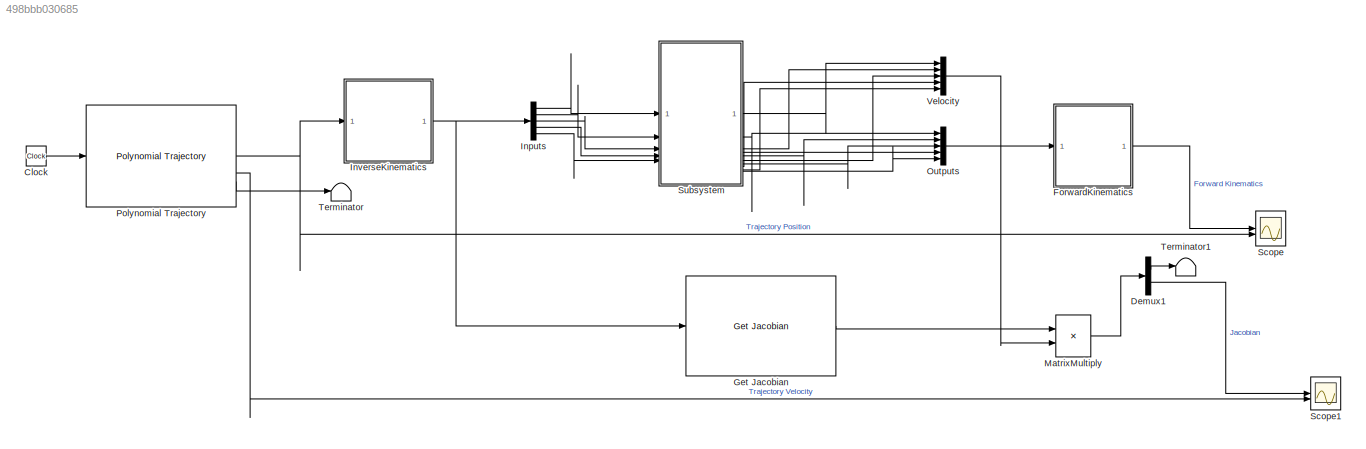
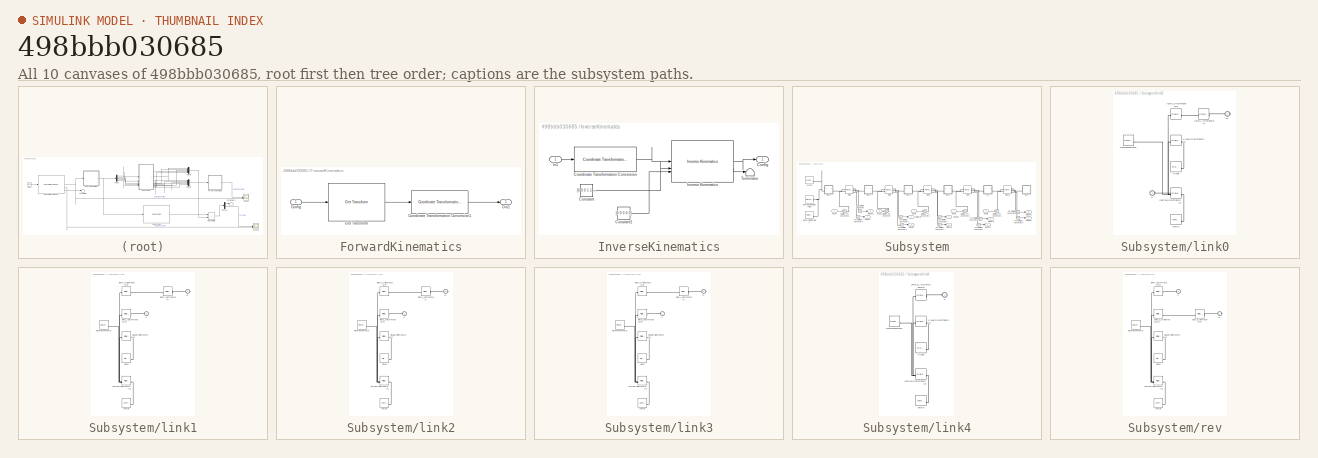
[diagram: thumbnail index - all 10 canvases of the model, root first then tree order]
MODEL slx_498bbb030685
KIND model
CONFIG AbsTol = auto
CONFIG EnableMultiTasking = off
CONFIG FixedStep = auto
CONFIG MaxStep = auto
CONFIG MinStep = auto
CONFIG RelTol = 1e-3
CONFIG SampleTimeConstraint = Unconstrained
CONFIG SolverName = VariableStepAuto
CONFIG StartTime = 0.0
CONFIG StopTime = 5
BLOCK [Clock] Clock
BLOCK [Demux] Demux1
  Outputs = 2
BLOCK [SubSystem] ForwardKinematics
BLOCK [Inport] ForwardKinematics/Config
BLOCK [Reference] ForwardKinematics/Coordinate Transformation Conversion1  REF=robotcorelib/Coordinate Transformation Conversion
  LibrarySourceBlock = robotutilslib/Coordinate Transformation Conversion
  SourceBlock = robotcorelib/Coordinate Transformation Conversion
  SourceType = robotics.slcore.internal.block.CoordinateTransformationConversion
BLOCK [Reference] ForwardKinematics/Get Transform  REF=robotmaniplib/Get Transform
  SourceBlock = robotmaniplib/Get Transform
  SourceType = Get Transform
BLOCK [Outport] ForwardKinematics/Out1
BLOCK [Reference] Get Jacobian  REF=robotmaniplib/Get Jacobian
  SourceBlock = robotmaniplib/Get Jacobian
  SourceType = Get Jacobian
BLOCK [Demux] Inputs
  Outputs = 5
BLOCK [SubSystem] InverseKinematics
BLOCK [Outport] InverseKinematics/Config
BLOCK [Constant] InverseKinematics/Constant
  Value = [0 0 0 1 1 1]
BLOCK [Constant] InverseKinematics/Constant1
  Value = [0 0 0 0 0]
BLOCK [Reference] InverseKinematics/Coordinate Transformation Conversion  REF=robotcorelib/Coordinate Transformation Conversion
  LibrarySourceBlock = robotutilslib/Coordinate Transformation Conversion
  SourceBlock = robotcorelib/Coordinate Transformation Conversion
  SourceType = robotics.slcore.internal.block.CoordinateTransformationConversion
BLOCK [Inport] InverseKinematics/In1
BLOCK [Reference] InverseKinematics/Inverse Kinematics  REF=robotmaniplib/Inverse Kinematics
  SourceBlock = robotmaniplib/Inverse Kinematics
  SourceType = Inverse Kinematics
BLOCK [Terminator] InverseKinematics/Terminator
BLOCK [Product] MatrixMultiply
  Multiplication = Matrix(*)
BLOCK [Mux] Outputs
  DisplayOption = bar
  Inputs = 5
BLOCK [Reference] Polynomial Trajectory  REF=robotcorelib/Polynomial Trajectory
  LibrarySourceBlock = robotutilslib/Polynomial Trajectory
  SourceBlock = robotcorelib/Polynomial Trajectory
  SourceType = robotics.slcore.internal.block.PolyTrajSys
BLOCK [Scope] Scope
  Floating = off
  NumInputPorts = 2
  ScopeSpecificationString = Simulink.scopes.TimeScopeBlockCfg('CurrentConfiguration', extmgr.ConfigurationSet(extmgr.Configuration('Core','General UI',true),extmgr.Configuration('Core','Source UI',true),extmgr.Configuration('Sources','WiredSimulink',true,'DataLoggingVariableName','ScopeData1'),extmgr.Configuration('Visuals','Time Domain',true,'SerializedDisplays',{struct('MinYLimReal','-0.51509','MaxYLimReal','0.61362','YLab...<+2438ch>
BLOCK [Scope] Scope1
  Floating = off
  NumInputPorts = 2
  ScopeSpecificationString = Simulink.scopes.TimeScopeBlockCfg('CurrentConfiguration', extmgr.ConfigurationSet(extmgr.Configuration('Core','General UI',true),extmgr.Configuration('Core','Source UI',true),extmgr.Configuration('Sources','WiredSimulink',true,'DataLoggingVariableName','ScopeData1'),extmgr.Configuration('Visuals','Time Domain',true,'SerializedDisplays',{struct('MinYLimReal','-1.29424','MaxYLimReal','1.82137','YLab...<+2379ch>
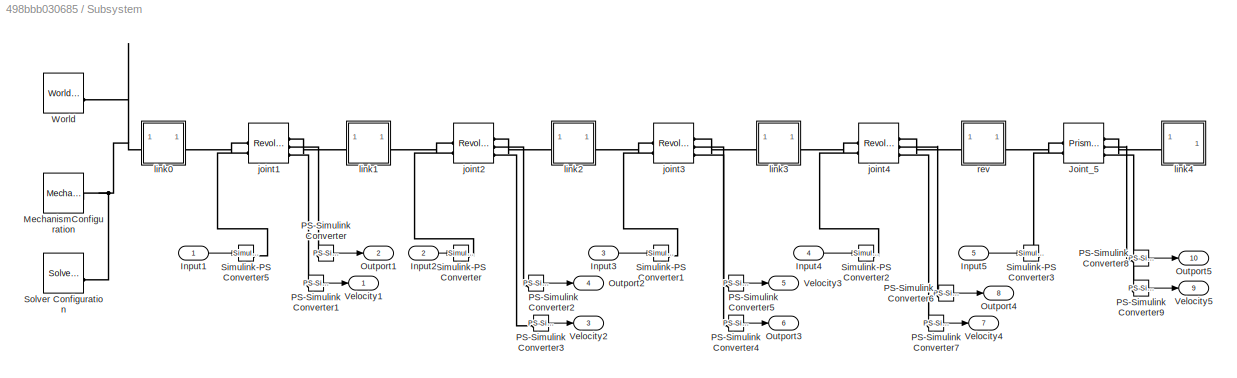
BLOCK [SubSystem] Subsystem
BLOCK [Inport] Subsystem/Input1
BLOCK [Inport] Subsystem/Input2
  Port = 2
BLOCK [Inport] Subsystem/Input3
  Port = 3
BLOCK [Inport] Subsystem/Input4
  Port = 4
BLOCK [Inport] Subsystem/Input5
  Port = 5
BLOCK [Reference] Subsystem/Joint_5  REF=sm_lib/Joints/Prismatic
Joint
  SourceBlock = sm_lib/Joints/Prismatic\nJoint
  SourceType = Prismatic\nJoint
BLOCK [Reference] Subsystem/MechanismConfiguration  REF=sm_lib/Utilities/Mechanism
Configuration
  SourceBlock = sm_lib/Utilities/Mechanism\nConfiguration
  SourceType = Mechanism\nConfiguration
BLOCK [Outport] Subsystem/Outport1
  Port = 2
BLOCK [Outport] Subsystem/Outport2
  Port = 4
BLOCK [Outport] Subsystem/Outport3
  Port = 6
BLOCK [Outport] Subsystem/Outport4
  Port = 8
BLOCK [Outport] Subsystem/Outport5
  Port = 10
BLOCK [Reference] Subsystem/PS-Simulink Converter  REF=nesl_utility/PS-Simulink
Converter
  SourceBlock = nesl_utility/PS-Simulink\nConverter
  SourceType = PS-Simulink\nConverter
BLOCK [Reference] Subsystem/PS-Simulink Converter1  REF=nesl_utility/PS-Simulink
Converter
  SourceBlock = nesl_utility/PS-Simulink\nConverter
  SourceType = PS-Simulink\nConverter
BLOCK [Reference] Subsystem/PS-Simulink Converter2  REF=nesl_utility/PS-Simulink
Converter
  SourceBlock = nesl_utility/PS-Simulink\nConverter
  SourceType = PS-Simulink\nConverter
BLOCK [Reference] Subsystem/PS-Simulink Converter3  REF=nesl_utility/PS-Simulink
Converter
  SourceBlock = nesl_utility/PS-Simulink\nConverter
  SourceType = PS-Simulink\nConverter
BLOCK [Reference] Subsystem/PS-Simulink Converter4  REF=nesl_utility/PS-Simulink
Converter
  SourceBlock = nesl_utility/PS-Simulink\nConverter
  SourceType = PS-Simulink\nConverter
BLOCK [Reference] Subsystem/PS-Simulink Converter5  REF=nesl_utility/PS-Simulink
Converter
  SourceBlock = nesl_utility/PS-Simulink\nConverter
  SourceType = PS-Simulink\nConverter
BLOCK [Reference] Subsystem/PS-Simulink Converter6  REF=nesl_utility/PS-Simulink
Converter
  SourceBlock = nesl_utility/PS-Simulink\nConverter
  SourceType = PS-Simulink\nConverter
BLOCK [Reference] Subsystem/PS-Simulink Converter7  REF=nesl_utility/PS-Simulink
Converter
  SourceBlock = nesl_utility/PS-Simulink\nConverter
  SourceType = PS-Simulink\nConverter
BLOCK [Reference] Subsystem/PS-Simulink Converter8  REF=nesl_utility/PS-Simulink
Converter
  SourceBlock = nesl_utility/PS-Simulink\nConverter
  SourceType = PS-Simulink\nConverter
BLOCK [Reference] Subsystem/PS-Simulink Converter9  REF=nesl_utility/PS-Simulink
Converter
  SourceBlock = nesl_utility/PS-Simulink\nConverter
  SourceType = PS-Simulink\nConverter
BLOCK [Reference] Subsystem/Simulink-PS Converter  REF=nesl_utility/Simulink-PS
Converter
  SourceBlock = nesl_utility/Simulink-PS\nConverter
  SourceType = Simulink-PS\nConverter
BLOCK [Reference] Subsystem/Simulink-PS Converter1  REF=nesl_utility/Simulink-PS
Converter
  SourceBlock = nesl_utility/Simulink-PS\nConverter
  SourceType = Simulink-PS\nConverter
BLOCK [Reference] Subsystem/Simulink-PS Converter2  REF=nesl_utility/Simulink-PS
Converter
  SourceBlock = nesl_utility/Simulink-PS\nConverter
  SourceType = Simulink-PS\nConverter
BLOCK [Reference] Subsystem/Simulink-PS Converter3  REF=nesl_utility/Simulink-PS
Converter
  SourceBlock = nesl_utility/Simulink-PS\nConverter
  SourceType = Simulink-PS\nConverter
BLOCK [Reference] Subsystem/Simulink-PS Converter5  REF=nesl_utility/Simulink-PS
Converter
  SourceBlock = nesl_utility/Simulink-PS\nConverter
  SourceType = Simulink-PS\nConverter
BLOCK [Reference] Subsystem/Solver Configuration  REF=nesl_utility/Solver
Configuration
  SourceBlock = nesl_utility/Solver\nConfiguration
  SourceType = Solver\nConfiguration
BLOCK [Outport] Subsystem/Velocity1
BLOCK [Outport] Subsystem/Velocity2
  Port = 3
BLOCK [Outport] Subsystem/Velocity3
  Port = 5
BLOCK [Outport] Subsystem/Velocity4
  Port = 7
BLOCK [Outport] Subsystem/Velocity5
  Port = 9
BLOCK [Reference] Subsystem/World  REF=sm_lib/Frames and
Transforms/World Frame
  SourceBlock = sm_lib/Frames and\nTransforms/World Frame
  SourceType = World Frame
BLOCK [Reference] Subsystem/joint1  REF=sm_lib/Joints/Revolute Joint
  SourceBlock = sm_lib/Joints/Revolute Joint
  SourceType = Revolute Joint
BLOCK [Reference] Subsystem/joint2  REF=sm_lib/Joints/Revolute Joint
  SourceBlock = sm_lib/Joints/Revolute Joint
  SourceType = Revolute Joint
BLOCK [Reference] Subsystem/joint3  REF=sm_lib/Joints/Revolute Joint
  SourceBlock = sm_lib/Joints/Revolute Joint
  SourceType = Revolute Joint
BLOCK [Reference] Subsystem/joint4  REF=sm_lib/Joints/Revolute Joint
  SourceBlock = sm_lib/Joints/Revolute Joint
  SourceType = Revolute Joint
BLOCK [SubSystem] Subsystem/link0
BLOCK [PMIOPort] Subsystem/link0/F
  Side = Left
BLOCK [PMIOPort] Subsystem/link0/F1
  Port = 2
  Side = Right
BLOCK [Reference] Subsystem/link0/Inertia  REF=sm_lib/Body Elements/Inertia
  SourceBlock = sm_lib/Body Elements/Inertia
  SourceType = Inertia
BLOCK [Reference] Subsystem/link0/InertiaOriginTransform  REF=sm_lib/Frames and
Transforms/Rigid
Transform
  SourceBlock = sm_lib/Frames and\nTransforms/Rigid\nTransform
  SourceType = Rigid\nTransform
BLOCK [Reference] Subsystem/link0/ReferenceFrame  REF=sm_lib/Frames and
Transforms/Reference
Frame
  SourceBlock = sm_lib/Frames and\nTransforms/Reference\nFrame
  SourceType = Reference\nFrame
BLOCK [Reference] Subsystem/link0/Visual  REF=sm_lib/Body Elements/File Solid
  SourceBlock = sm_lib/Body Elements/File Solid
  SourceType = File Solid
BLOCK [Reference] Subsystem/link0/VisualOriginTransform  REF=sm_lib/Frames and
Transforms/Rigid
Transform
  SourceBlock = sm_lib/Frames and\nTransforms/Rigid\nTransform
  SourceType = Rigid\nTransform
BLOCK [Reference] Subsystem/link0/joint1_AxisTransform  REF=sm_lib/Frames and
Transforms/Rigid
Transform
  SourceBlock = sm_lib/Frames and\nTransforms/Rigid\nTransform
  SourceType = Rigid\nTransform
BLOCK [Reference] Subsystem/link0/joint1_OriginTransform  REF=sm_lib/Frames and
Transforms/Rigid
Transform
  SourceBlock = sm_lib/Frames and\nTransforms/Rigid\nTransform
  SourceType = Rigid\nTransform
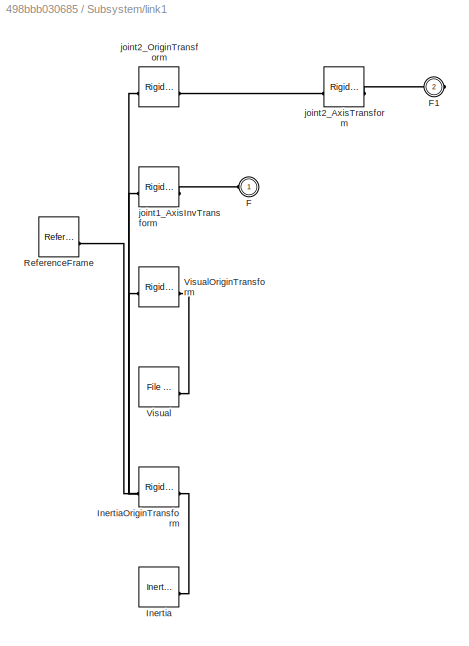
BLOCK [SubSystem] Subsystem/link1
BLOCK [PMIOPort] Subsystem/link1/F
  Side = Left
BLOCK [PMIOPort] Subsystem/link1/F1
  Port = 2
  Side = Right
BLOCK [Reference] Subsystem/link1/Inertia  REF=sm_lib/Body Elements/Inertia
  SourceBlock = sm_lib/Body Elements/Inertia
  SourceType = Inertia
BLOCK [Reference] Subsystem/link1/InertiaOriginTransform  REF=sm_lib/Frames and
Transforms/Rigid
Transform
  SourceBlock = sm_lib/Frames and\nTransforms/Rigid\nTransform
  SourceType = Rigid\nTransform
BLOCK [Reference] Subsystem/link1/ReferenceFrame  REF=sm_lib/Frames and
Transforms/Reference
Frame
  SourceBlock = sm_lib/Frames and\nTransforms/Reference\nFrame
  SourceType = Reference\nFrame
BLOCK [Reference] Subsystem/link1/Visual  REF=sm_lib/Body Elements/File Solid
  SourceBlock = sm_lib/Body Elements/File Solid
  SourceType = File Solid
BLOCK [Reference] Subsystem/link1/VisualOriginTransform  REF=sm_lib/Frames and
Transforms/Rigid
Transform
  SourceBlock = sm_lib/Frames and\nTransforms/Rigid\nTransform
  SourceType = Rigid\nTransform
BLOCK [Reference] Subsystem/link1/joint1_AxisInvTransform  REF=sm_lib/Frames and
Transforms/Rigid
Transform
  SourceBlock = sm_lib/Frames and\nTransforms/Rigid\nTransform
  SourceType = Rigid\nTransform
BLOCK [Reference] Subsystem/link1/joint2_AxisTransform  REF=sm_lib/Frames and
Transforms/Rigid
Transform
  SourceBlock = sm_lib/Frames and\nTransforms/Rigid\nTransform
  SourceType = Rigid\nTransform
BLOCK [Reference] Subsystem/link1/joint2_OriginTransform  REF=sm_lib/Frames and
Transforms/Rigid
Transform
  SourceBlock = sm_lib/Frames and\nTransforms/Rigid\nTransform
  SourceType = Rigid\nTransform
BLOCK [SubSystem] Subsystem/link2
BLOCK [PMIOPort] Subsystem/link2/F
  Side = Left
BLOCK [PMIOPort] Subsystem/link2/F1
  Port = 2
  Side = Right
BLOCK [Reference] Subsystem/link2/Inertia  REF=sm_lib/Body Elements/Inertia
  SourceBlock = sm_lib/Body Elements/Inertia
  SourceType = Inertia
BLOCK [Reference] Subsystem/link2/InertiaOriginTransform  REF=sm_lib/Frames and
Transforms/Rigid
Transform
  SourceBlock = sm_lib/Frames and\nTransforms/Rigid\nTransform
  SourceType = Rigid\nTransform
BLOCK [Reference] Subsystem/link2/ReferenceFrame  REF=sm_lib/Frames and
Transforms/Reference
Frame
  SourceBlock = sm_lib/Frames and\nTransforms/Reference\nFrame
  SourceType = Reference\nFrame
BLOCK [Reference] Subsystem/link2/Visual  REF=sm_lib/Body Elements/File Solid
  SourceBlock = sm_lib/Body Elements/File Solid
  SourceType = File Solid
BLOCK [Reference] Subsystem/link2/VisualOriginTransform  REF=sm_lib/Frames and
Transforms/Rigid
Transform
  SourceBlock = sm_lib/Frames and\nTransforms/Rigid\nTransform
  SourceType = Rigid\nTransform
BLOCK [Reference] Subsystem/link2/joint2_AxisInvTransform  REF=sm_lib/Frames and
Transforms/Rigid
Transform
  SourceBlock = sm_lib/Frames and\nTransforms/Rigid\nTransform
  SourceType = Rigid\nTransform
BLOCK [Reference] Subsystem/link2/joint3_AxisTransform  REF=sm_lib/Frames and
Transforms/Rigid
Transform
  SourceBlock = sm_lib/Frames and\nTransforms/Rigid\nTransform
  SourceType = Rigid\nTransform
BLOCK [Reference] Subsystem/link2/joint3_OriginTransform  REF=sm_lib/Frames and
Transforms/Rigid
Transform
  SourceBlock = sm_lib/Frames and\nTransforms/Rigid\nTransform
  SourceType = Rigid\nTransform
BLOCK [SubSystem] Subsystem/link3
BLOCK [PMIOPort] Subsystem/link3/F
  Side = Left
BLOCK [PMIOPort] Subsystem/link3/F1
  Port = 2
  Side = Right
BLOCK [Reference] Subsystem/link3/Inertia  REF=sm_lib/Body Elements/Inertia
  SourceBlock = sm_lib/Body Elements/Inertia
  SourceType = Inertia
BLOCK [Reference] Subsystem/link3/InertiaOriginTransform  REF=sm_lib/Frames and
Transforms/Rigid
Transform
  SourceBlock = sm_lib/Frames and\nTransforms/Rigid\nTransform
  SourceType = Rigid\nTransform
BLOCK [Reference] Subsystem/link3/ReferenceFrame  REF=sm_lib/Frames and
Transforms/Reference
Frame
  SourceBlock = sm_lib/Frames and\nTransforms/Reference\nFrame
  SourceType = Reference\nFrame
BLOCK [Reference] Subsystem/link3/Visual  REF=sm_lib/Body Elements/File Solid
  SourceBlock = sm_lib/Body Elements/File Solid
  SourceType = File Solid
BLOCK [Reference] Subsystem/link3/VisualOriginTransform  REF=sm_lib/Frames and
Transforms/Rigid
Transform
  SourceBlock = sm_lib/Frames and\nTransforms/Rigid\nTransform
  SourceType = Rigid\nTransform
BLOCK [Reference] Subsystem/link3/joint3_AxisInvTransform  REF=sm_lib/Frames and
Transforms/Rigid
Transform
  SourceBlock = sm_lib/Frames and\nTransforms/Rigid\nTransform
  SourceType = Rigid\nTransform
BLOCK [Reference] Subsystem/link3/joint4_AxisTransform  REF=sm_lib/Frames and
Transforms/Rigid
Transform
  SourceBlock = sm_lib/Frames and\nTransforms/Rigid\nTransform
  SourceType = Rigid\nTransform
BLOCK [Reference] Subsystem/link3/joint4_OriginTransform  REF=sm_lib/Frames and
Transforms/Rigid
Transform
  SourceBlock = sm_lib/Frames and\nTransforms/Rigid\nTransform
  SourceType = Rigid\nTransform
BLOCK [SubSystem] Subsystem/link4
BLOCK [PMIOPort] Subsystem/link4/F
  Side = Left
BLOCK [Reference] Subsystem/link4/Inertia  REF=sm_lib/Body Elements/Inertia
  SourceBlock = sm_lib/Body Elements/Inertia
  SourceType = Inertia
BLOCK [Reference] Subsystem/link4/InertiaOriginTransform  REF=sm_lib/Frames and
Transforms/Rigid
Transform
  SourceBlock = sm_lib/Frames and\nTransforms/Rigid\nTransform
  SourceType = Rigid\nTransform
BLOCK [Reference] Subsystem/link4/Joint_5_AxisInvTransform  REF=sm_lib/Frames and
Transforms/Rigid
Transform
  SourceBlock = sm_lib/Frames and\nTransforms/Rigid\nTransform
  SourceType = Rigid\nTransform
BLOCK [Reference] Subsystem/link4/ReferenceFrame  REF=sm_lib/Frames and
Transforms/Reference
Frame
  SourceBlock = sm_lib/Frames and\nTransforms/Reference\nFrame
  SourceType = Reference\nFrame
BLOCK [Reference] Subsystem/link4/Visual  REF=sm_lib/Body Elements/File Solid
  SourceBlock = sm_lib/Body Elements/File Solid
  SourceType = File Solid
BLOCK [Reference] Subsystem/link4/VisualOriginTransform  REF=sm_lib/Frames and
Transforms/Rigid
Transform
  SourceBlock = sm_lib/Frames and\nTransforms/Rigid\nTransform
  SourceType = Rigid\nTransform
BLOCK [SubSystem] Subsystem/rev
BLOCK [PMIOPort] Subsystem/rev/F
  Side = Left
BLOCK [PMIOPort] Subsystem/rev/F1
  Port = 2
  Side = Right
BLOCK [Reference] Subsystem/rev/Inertia  REF=sm_lib/Body Elements/Inertia
  SourceBlock = sm_lib/Body Elements/Inertia
  SourceType = Inertia
BLOCK [Reference] Subsystem/rev/InertiaOriginTransform  REF=sm_lib/Frames and
Transforms/Rigid
Transform
  SourceBlock = sm_lib/Frames and\nTransforms/Rigid\nTransform
  SourceType = Rigid\nTransform
BLOCK [Reference] Subsystem/rev/Joint_5_AxisTransform  REF=sm_lib/Frames and
Transforms/Rigid
Transform
  SourceBlock = sm_lib/Frames and\nTransforms/Rigid\nTransform
  SourceType = Rigid\nTransform
BLOCK [Reference] Subsystem/rev/Joint_5_OriginTransform  REF=sm_lib/Frames and
Transforms/Rigid
Transform
  SourceBlock = sm_lib/Frames and\nTransforms/Rigid\nTransform
  SourceType = Rigid\nTransform
BLOCK [Reference] Subsystem/rev/ReferenceFrame  REF=sm_lib/Frames and
Transforms/Reference
Frame
  SourceBlock = sm_lib/Frames and\nTransforms/Reference\nFrame
  SourceType = Reference\nFrame
BLOCK [Reference] Subsystem/rev/Visual  REF=sm_lib/Body Elements/File Solid
  SourceBlock = sm_lib/Body Elements/File Solid
  SourceType = File Solid
BLOCK [Reference] Subsystem/rev/VisualOriginTransform  REF=sm_lib/Frames and
Transforms/Rigid
Transform
  SourceBlock = sm_lib/Frames and\nTransforms/Rigid\nTransform
  SourceType = Rigid\nTransform
BLOCK [Reference] Subsystem/rev/joint4_AxisInvTransform  REF=sm_lib/Frames and
Transforms/Rigid
Transform
  SourceBlock = sm_lib/Frames and\nTransforms/Rigid\nTransform
  SourceType = Rigid\nTransform
BLOCK [Terminator] Terminator
BLOCK [Terminator] Terminator1
BLOCK [Mux] Velocity
  DisplayOption = bar
  Inputs = 5
LINE Clock:1 -> Polynomial Trajectory:1
LINE Demux1:1 -> Terminator1:1
LINE Demux1:2 -> Scope1:1
LINE ForwardKinematics/Config:1 -> ForwardKinematics/Get Transform:1
LINE ForwardKinematics/Coordinate Transformation Conversion1:1 -> ForwardKinematics/Out1:1
LINE ForwardKinematics/Get Transform:1 -> ForwardKinematics/Coordinate Transformation Conversion1:1
LINE ForwardKinematics:1 -> Scope:1
LINE Get Jacobian:1 -> MatrixMultiply:1
LINE Inputs:1 -> Subsystem:1
LINE Inputs:2 -> Subsystem:2
LINE Inputs:3 -> Subsystem:3
LINE Inputs:4 -> Subsystem:4
LINE Inputs:5 -> Subsystem:5
LINE InverseKinematics/Constant1:1 -> InverseKinematics/Inverse Kinematics:3
LINE InverseKinematics/Constant:1 -> InverseKinematics/Inverse Kinematics:2
LINE InverseKinematics/Coordinate Transformation Conversion:1 -> InverseKinematics/Inverse Kinematics:1
LINE InverseKinematics/In1:1 -> InverseKinematics/Coordinate Transformation Conversion:1
LINE InverseKinematics/Inverse Kinematics:1 -> InverseKinematics/Config:1
LINE InverseKinematics/Inverse Kinematics:2 -> InverseKinematics/Terminator:1
NET InverseKinematics:1 -> Get Jacobian:1, Inputs:1
LINE MatrixMultiply:1 -> Demux1:1
LINE Outputs:1 -> ForwardKinematics:1
NET Polynomial Trajectory:1 -> InverseKinematics:1, Scope:2
LINE Polynomial Trajectory:2 -> Scope1:2
LINE Polynomial Trajectory:3 -> Terminator:1
LINE Subsystem/Input1:1 -> Subsystem/Simulink-PS Converter5:1
LINE Subsystem/Input2:1 -> Subsystem/Simulink-PS Converter:1
LINE Subsystem/Input3:1 -> Subsystem/Simulink-PS Converter1:1
LINE Subsystem/Input4:1 -> Subsystem/Simulink-PS Converter2:1
LINE Subsystem/Input5:1 -> Subsystem/Simulink-PS Converter3:1
LINE Subsystem/PS-Simulink Converter1:1 -> Subsystem/Velocity1:1
LINE Subsystem/PS-Simulink Converter2:1 -> Subsystem/Outport2:1
LINE Subsystem/PS-Simulink Converter3:1 -> Subsystem/Velocity2:1
LINE Subsystem/PS-Simulink Converter4:1 -> Subsystem/Outport3:1
LINE Subsystem/PS-Simulink Converter5:1 -> Subsystem/Velocity3:1
LINE Subsystem/PS-Simulink Converter6:1 -> Subsystem/Outport4:1
LINE Subsystem/PS-Simulink Converter7:1 -> Subsystem/Velocity4:1
LINE Subsystem/PS-Simulink Converter8:1 -> Subsystem/Outport5:1
LINE Subsystem/PS-Simulink Converter9:1 -> Subsystem/Velocity5:1
LINE Subsystem/PS-Simulink Converter:1 -> Subsystem/Outport1:1
LINE Subsystem:1 -> Velocity:1
LINE Subsystem:10 -> Outputs:5
LINE Subsystem:2 -> Outputs:1
LINE Subsystem:3 -> Velocity:2
LINE Subsystem:4 -> Outputs:2
LINE Subsystem:5 -> Velocity:3
LINE Subsystem:6 -> Outputs:3
LINE Subsystem:7 -> Velocity:4
LINE Subsystem:8 -> Outputs:4
LINE Subsystem:9 -> Velocity:5
LINE Velocity:1 -> MatrixMultiply:2
PLINE Subsystem/Joint_5:LConn1 -- Subsystem/rev:RConn1
PLINE Subsystem/Joint_5:LConn2 -- Subsystem/Simulink-PS Converter3:RConn1
PLINE Subsystem/Joint_5:RConn1 -- Subsystem/link4:LConn1
PLINE Subsystem/Joint_5:RConn2 -- Subsystem/PS-Simulink Converter8:LConn1
PLINE Subsystem/Joint_5:RConn3 -- Subsystem/PS-Simulink Converter9:LConn1
PNET net1: Subsystem/MechanismConfiguration:RConn1 -- Subsystem/Solver Configuration:RConn1 -- Subsystem/World:RConn1 -- Subsystem/link0:LConn1
PLINE Subsystem/PS-Simulink Converter1:LConn1 -- Subsystem/joint1:RConn3
PLINE Subsystem/PS-Simulink Converter2:LConn1 -- Subsystem/joint2:RConn2
PLINE Subsystem/PS-Simulink Converter3:LConn1 -- Subsystem/joint2:RConn3
PLINE Subsystem/PS-Simulink Converter4:LConn1 -- Subsystem/joint3:RConn2
PLINE Subsystem/PS-Simulink Converter5:LConn1 -- Subsystem/joint3:RConn3
PLINE Subsystem/PS-Simulink Converter6:LConn1 -- Subsystem/joint4:RConn2
PLINE Subsystem/PS-Simulink Converter7:LConn1 -- Subsystem/joint4:RConn3
PLINE Subsystem/PS-Simulink Converter:LConn1 -- Subsystem/joint1:RConn2
PLINE Subsystem/Simulink-PS Converter1:RConn1 -- Subsystem/joint3:LConn2
PLINE Subsystem/Simulink-PS Converter2:RConn1 -- Subsystem/joint4:LConn2
PLINE Subsystem/Simulink-PS Converter5:RConn1 -- Subsystem/joint1:LConn2
PLINE Subsystem/Simulink-PS Converter:RConn1 -- Subsystem/joint2:LConn2
PLINE Subsystem/joint1:LConn1 -- Subsystem/link0:RConn1
PLINE Subsystem/joint1:RConn1 -- Subsystem/link1:LConn1
PLINE Subsystem/joint2:LConn1 -- Subsystem/link1:RConn1
PLINE Subsystem/joint2:RConn1 -- Subsystem/link2:LConn1
PLINE Subsystem/joint3:LConn1 -- Subsystem/link2:RConn1
PLINE Subsystem/joint3:RConn1 -- Subsystem/link3:LConn1
PLINE Subsystem/joint4:LConn1 -- Subsystem/link3:RConn1
PLINE Subsystem/joint4:RConn1 -- Subsystem/rev:LConn1
PLINE Subsystem/link0/F1:RConn1 -- Subsystem/link0/joint1_AxisTransform:RConn1
PNET net2: Subsystem/link0/F:RConn1 -- Subsystem/link0/InertiaOriginTransform:LConn1 -- Subsystem/link0/ReferenceFrame:RConn1 -- Subsystem/link0/VisualOriginTransform:LConn1 -- Subsystem/link0/joint1_OriginTransform:LConn1
PLINE Subsystem/link0/Inertia:RConn1 -- Subsystem/link0/InertiaOriginTransform:RConn1
PLINE Subsystem/link0/Visual:RConn1 -- Subsystem/link0/VisualOriginTransform:RConn1
PLINE Subsystem/link0/joint1_AxisTransform:LConn1 -- Subsystem/link0/joint1_OriginTransform:RConn1
PLINE Subsystem/link1/F1:RConn1 -- Subsystem/link1/joint2_AxisTransform:RConn1
PLINE Subsystem/link1/F:RConn1 -- Subsystem/link1/joint1_AxisInvTransform:RConn1
PLINE Subsystem/link1/Inertia:RConn1 -- Subsystem/link1/InertiaOriginTransform:RConn1
PNET net3: Subsystem/link1/InertiaOriginTransform:LConn1 -- Subsystem/link1/ReferenceFrame:RConn1 -- Subsystem/link1/VisualOriginTransform:LConn1 -- Subsystem/link1/joint1_AxisInvTransform:LConn1 -- Subsystem/link1/joint2_OriginTransform:LConn1
PLINE Subsystem/link1/Visual:RConn1 -- Subsystem/link1/VisualOriginTransform:RConn1
PLINE Subsystem/link1/joint2_AxisTransform:LConn1 -- Subsystem/link1/joint2_OriginTransform:RConn1
PLINE Subsystem/link2/F1:RConn1 -- Subsystem/link2/joint3_AxisTransform:RConn1
PLINE Subsystem/link2/F:RConn1 -- Subsystem/link2/joint2_AxisInvTransform:RConn1
PLINE Subsystem/link2/Inertia:RConn1 -- Subsystem/link2/InertiaOriginTransform:RConn1
PNET net4: Subsystem/link2/InertiaOriginTransform:LConn1 -- Subsystem/link2/ReferenceFrame:RConn1 -- Subsystem/link2/VisualOriginTransform:LConn1 -- Subsystem/link2/joint2_AxisInvTransform:LConn1 -- Subsystem/link2/joint3_OriginTransform:LConn1
PLINE Subsystem/link2/Visual:RConn1 -- Subsystem/link2/VisualOriginTransform:RConn1
PLINE Subsystem/link2/joint3_AxisTransform:LConn1 -- Subsystem/link2/joint3_OriginTransform:RConn1
PLINE Subsystem/link3/F1:RConn1 -- Subsystem/link3/joint4_AxisTransform:RConn1
PLINE Subsystem/link3/F:RConn1 -- Subsystem/link3/joint3_AxisInvTransform:RConn1
PLINE Subsystem/link3/Inertia:RConn1 -- Subsystem/link3/InertiaOriginTransform:RConn1
PNET net5: Subsystem/link3/InertiaOriginTransform:LConn1 -- Subsystem/link3/ReferenceFrame:RConn1 -- Subsystem/link3/VisualOriginTransform:LConn1 -- Subsystem/link3/joint3_AxisInvTransform:LConn1 -- Subsystem/link3/joint4_OriginTransform:LConn1
PLINE Subsystem/link3/Visual:RConn1 -- Subsystem/link3/VisualOriginTransform:RConn1
PLINE Subsystem/link3/joint4_AxisTransform:LConn1 -- Subsystem/link3/joint4_OriginTransform:RConn1
PLINE Subsystem/link4/F:RConn1 -- Subsystem/link4/Joint_5_AxisInvTransform:RConn1
PLINE Subsystem/link4/Inertia:RConn1 -- Subsystem/link4/InertiaOriginTransform:RConn1
PNET net6: Subsystem/link4/InertiaOriginTransform:LConn1 -- Subsystem/link4/Joint_5_AxisInvTransform:LConn1 -- Subsystem/link4/ReferenceFrame:RConn1 -- Subsystem/link4/VisualOriginTransform:LConn1
PLINE Subsystem/link4/Visual:RConn1 -- Subsystem/link4/VisualOriginTransform:RConn1
PLINE Subsystem/rev/F1:RConn1 -- Subsystem/rev/Joint_5_AxisTransform:RConn1
PLINE Subsystem/rev/F:RConn1 -- Subsystem/rev/joint4_AxisInvTransform:RConn1
PLINE Subsystem/rev/Inertia:RConn1 -- Subsystem/rev/InertiaOriginTransform:RConn1
PNET net7: Subsystem/rev/InertiaOriginTransform:LConn1 -- Subsystem/rev/Joint_5_OriginTransform:LConn1 -- Subsystem/rev/ReferenceFrame:RConn1 -- Subsystem/rev/VisualOriginTransform:LConn1 -- Subsystem/rev/joint4_AxisInvTransform:LConn1
PLINE Subsystem/rev/Joint_5_AxisTransform:LConn1 -- Subsystem/rev/Joint_5_OriginTransform:RConn1
PLINE Subsystem/rev/Visual:RConn1 -- Subsystem/rev/VisualOriginTransform:RConn1
note: NET lines group one-source signal fan-out (src -> all destinations, sorted); 1:1 wires keep LINE; PNET lines group multi-terminal physical nets as a canonical sorted terminal list (undirected conserving connections); 2-terminal nets keep the pairwise PLINE form
